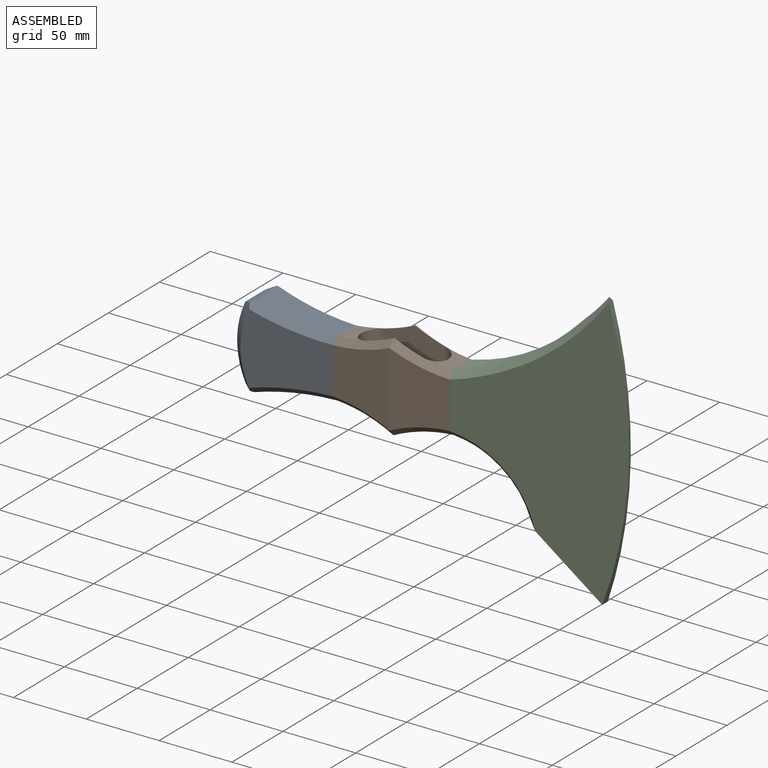
[diagram: assembled view]
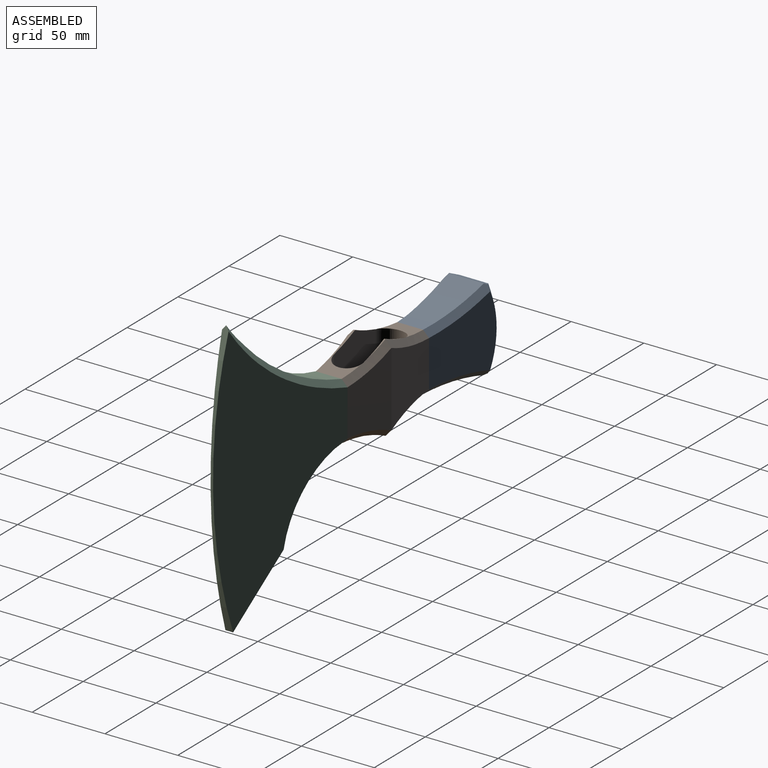
[diagram: assembled view, second angle]
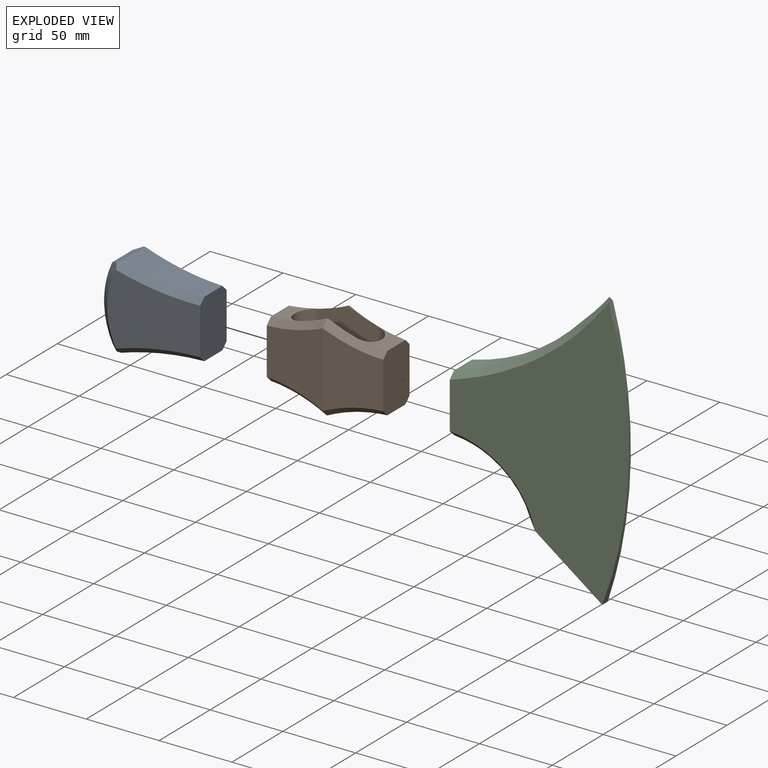
[diagram: exploded view]
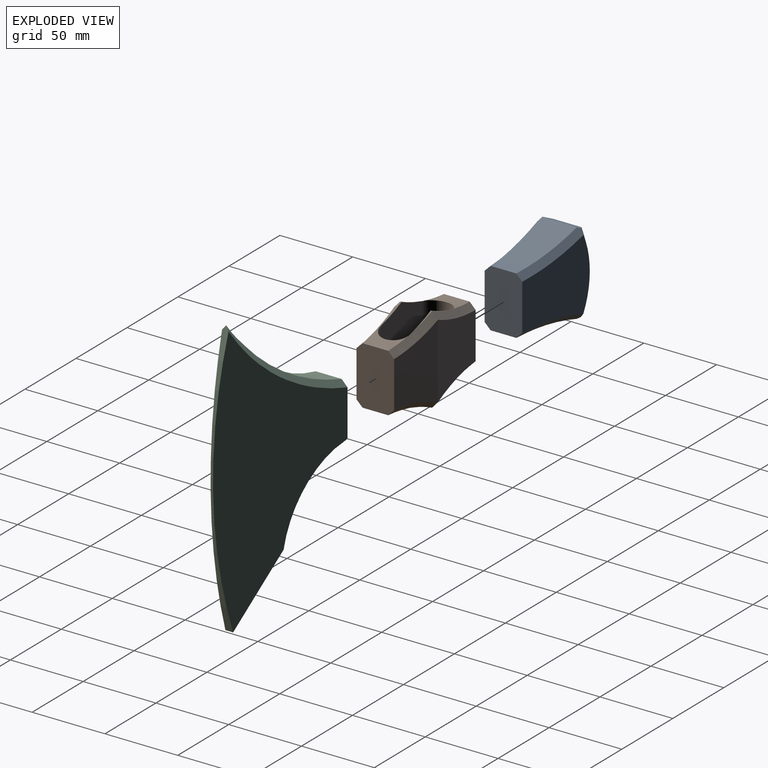
[diagram: exploded view, second angle]
ASSEMBLY  parts=3 mates=2
PART A: 14 faces, bbox 68.5x32.5x58.9 mm
  f0: cylinder r=185mm len=55.18mm, axis (0,1,0), area 1157mm2, adj f1,f8,f10,f11
  f1: plane 40x25.81mm, normal (1,0,0), area 999.2mm2, adj f0,f2,f4,f5,f10,f11,f12,f13
  f2: cylinder r=185mm len=55.18mm, axis (0,1,0), area 1157mm2, adj f1,f7,f12,f13
  f3: cylinder r=60mm len=50.34mm, axis (0,1,0), area 1019.1mm2, adj f6,f7,f8,f9
  f4: plane 61.68x49.26mm, normal (0.05,-1,0), area 2288.4mm2, adj f1,f6,f10,f12
  f5: plane 61.68x49.26mm, normal (0.05,1,0), area 2288.4mm2, adj f1,f9,f11,f13
  f6: bspline ~58.64x13.26mm, area 480.4mm2, adj f3,f4,f7,f8,f10,f12
  f7: plane 26.8x7.54mm, normal (-0.41,0,0.91), area 189.4mm2, adj f2,f3,f6,f9,f12,f13
  f8: plane 26.8x7.54mm, normal (-0.41,0,-0.91), area 189.4mm2, adj f0,f3,f6,f9,f10,f11
  f9: bspline ~58.64x13.26mm, area 480.4mm2, adj f3,f5,f7,f8,f11,f13
  f10: bspline ~57.97x12.97mm, area 327.9mm2, adj f0,f1,f4,f6,f8
  f11: bspline ~57.97x12.97mm, area 327.9mm2, adj f0,f1,f5,f8,f9
  f12: bspline ~57.97x12.97mm, area 327.9mm2, adj f1,f2,f4,f6,f7
  f13: bspline ~57.97x12.97mm, area 327.9mm2, adj f1,f2,f5,f7,f9
PART B: 30 faces, bbox 84.4x30.4x61 mm
  f0: cylinder r=110mm len=18.31mm, axis (0,-1,0), area 9.7mm2, adj f12,f21,f24
  f1: cylinder r=110mm len=19.6mm, axis (0,-1,0), area 219.3mm2, adj f8,f13,f24,f26
  f2: cylinder r=100mm len=18.32mm, axis (0,-1,0), area 9.8mm2, adj f11,f20,f28
  f3: cylinder r=100mm len=19.6mm, axis (0,-1,0), area 218.9mm2, adj f8,f13,f22,f28
  f4: cylinder r=110mm len=19.6mm, axis (0,-1,0), area 219.3mm2, adj f16,f19,f25,f27
  f5: cylinder r=110mm len=18.31mm, axis (0,-1,0), area 9.7mm2, adj f11,f15,f27
  f6: cylinder r=100mm len=18.32mm, axis (0,-1,0), area 9.8mm2, adj f12,f14,f23
  f7: cylinder r=100mm len=19.6mm, axis (0,-1,0), area 218.9mm2, adj f16,f19,f23,f29
  f8: plane 40x25.81mm, normal (1,0,0), area 998.9mm2, adj f1,f3,f9,f10,f22,f24,f26,f28
  f9: plane 51.22x40.04mm, normal (0.05,-1,0), area 1554.4mm2, adj f8,f17,f22,f24
  f10: plane 51.22x40.04mm, normal (0.05,1,0), area 1554.5mm2, adj f8,f18,f26,f28
  f11: plane 60.01x40.01mm, normal (0,-1,0), area 2084.7mm2, adj f2,f5,f13,f15,f19,f20,f26,f27
  f12: plane 60.01x40.01mm, normal (0,1,0), area 2084.7mm2, adj f0,f6,f13,f14,f19,f21,f22,f23
  f13: cylinder r=10mm len=45.59mm, axis (0,0,1), area 1356.1mm2, adj f1,f3,f11,f12,f22,f24,f26,f28
  f14: cylinder r=100mm len=18.32mm, axis (0,-1,0), area 9.8mm2, adj f6,f12,f22
  f15: cylinder r=110mm len=18.31mm, axis (0,-1,0), area 9.7mm2, adj f5,f11,f26
  f16: plane 40x25.81mm, normal (-1,0,0), area 998.9mm2, adj f4,f7,f17,f18,f23,f25,f27,f29
  f17: plane 51.22x40.04mm, normal (-0.05,-1,0), area 1554.4mm2, adj f9,f16,f23,f25
  f18: plane 51.22x40.04mm, normal (-0.05,1,0), area 1554.5mm2, adj f10,f16,f27,f29
  f19: cylinder r=10mm len=45.59mm, axis (0,0,1), area 1356.1mm2, adj f4,f7,f11,f12,f23,f25,f27,f29
  f20: cylinder r=100mm len=18.32mm, axis (0,-1,0), area 9.8mm2, adj f2,f11,f29
  f21: cylinder r=110mm len=18.31mm, axis (0,-1,0), area 9.7mm2, adj f0,f12,f25
  f22: bspline ~41.64x14.09mm, area 238.5mm2, adj f3,f8,f9,f12,f13,f14,f23
  f23: bspline ~41.64x14.09mm, area 238.5mm2, adj f6,f7,f12,f16,f17,f19,f22
  f24: bspline ~45.79x15.16mm, area 238.2mm2, adj f0,f1,f8,f9,f12,f13,f25
  f25: bspline ~45.79x15.16mm, area 238.2mm2, adj f4,f12,f16,f17,f19,f21,f24
  f26: bspline ~45.79x15.16mm, area 238.2mm2, adj f1,f8,f10,f11,f13,f15,f27
  f27: bspline ~45.79x15.16mm, area 238.2mm2, adj f4,f5,f11,f16,f18,f19,f26
  f28: bspline ~41.64x14.09mm, area 238.5mm2, adj f2,f3,f8,f10,f11,f13,f29
  f29: bspline ~41.64x14.09mm, area 238.5mm2, adj f7,f11,f16,f18,f19,f20,f28
PART C: 11 faces, bbox 125.5x30.3x201.8 mm
  f0: cylinder r=60mm len=48.78mm, axis (0,1,0), area 832.5mm2, adj f1,f4,f7,f8
  f1: plane 49.09x41.18mm, normal (-0.64,0,-0.77), area 630.5mm2, adj f0,f2,f5,f6,f7,f8
  f2: cylinder r=300mm len=191.03mm, axis (0,1,0), area 942.9mm2, adj f1,f5,f6,f9,f10
  f3: cylinder r=176.44mm len=82.69mm, axis (0,1,0), area 869.6mm2, adj f4,f9,f10
  f4: plane 40.03x25.84mm, normal (-1,0,0), area 999.9mm2, adj f0,f3,f5,f6,f7,f8,f9,f10
  f5: plane 191.42x117.91mm, normal (0.1,-0.99,0), area 11534.1mm2, adj f1,f2,f4,f8,f9
  f6: plane 191.42x117.91mm, normal (0.1,0.99,0), area 11533.4mm2, adj f1,f2,f4,f7,f10
  f7: bspline ~59.82x54.49mm, area 414.6mm2, adj f0,f1,f4,f6
  f8: bspline ~59.82x54.49mm, area 414.6mm2, adj f0,f1,f4,f5
  f9: bspline ~114.56x82.6mm, area 679.4mm2, adj f2,f3,f4,f5,f10
  f10: bspline ~114.56x82.6mm, area 679.4mm2, adj f2,f3,f4,f6,f9
PLACE A t=(-1088.31,-102.03,-619.72)mm
PLACE B t=(-1030.88,-99.93,-629.72)mm
PLACE C t=(-990.88,-102.03,-699.7)mm
MATE fastened A.f1 <-> B.f16  axis (1,0,0) through (-1070.88,-114.93,-599.72)mm
MATE fastened C.f4 <-> B.f8  axis (-1,0,0) through (-990.88,-114.93,-599.72)mm
